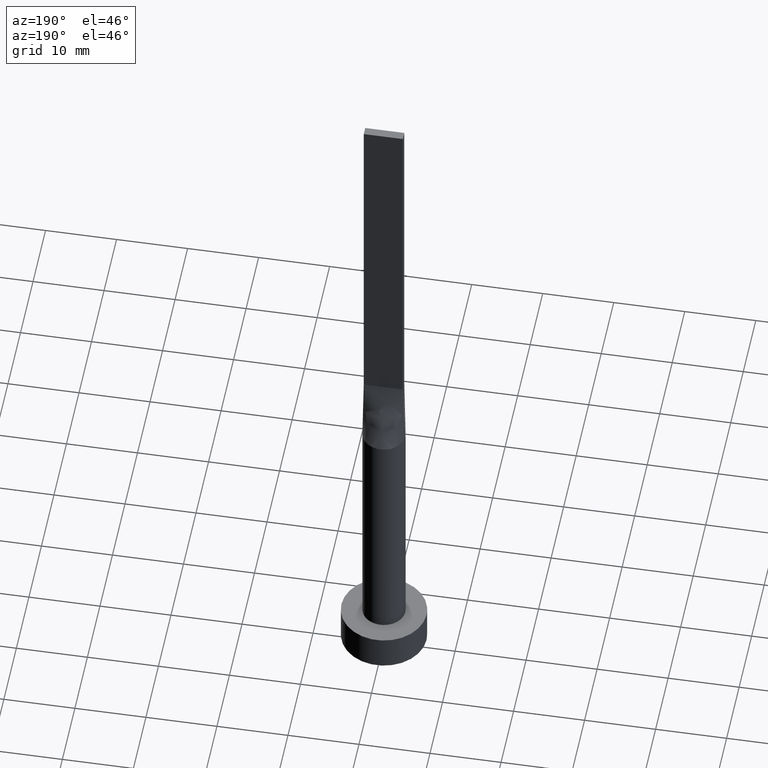
[diagram: clean part render]
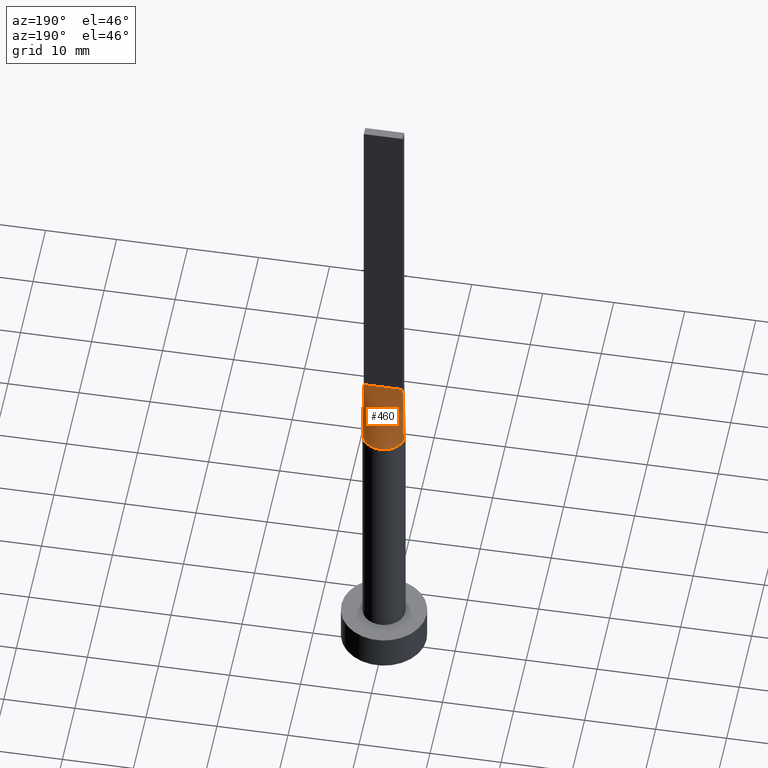
[diagram: same view with one face highlighted and labeled with its STEP entity id]
A machine part, auxiliary view. The second image highlights one B-rep face of the part: STEP entity #460.
In plain terms, the highlighted face is a freeform B-spline surface patch.
Its self-contained STEP definition (entity closure, byte-faithful):
#4 = CARTESIAN_POINT ( 'NONE',  ( -2.878980386154874616, 0.8781411751610629368, 39.99999999999999289 ) ) ;
#8 = CARTESIAN_POINT ( 'NONE',  ( 0.4026715616377294915, 2.999999999999999556, 40.00000000000000000 ) ) ;
#10 = VECTOR ( 'NONE', #322, 1000.000000000000000 ) ;
#13 = CARTESIAN_POINT ( 'NONE',  ( -1.829136458871247761, 2.402980488111649660, 39.99999999999999289 ) ) ;
#16 = CARTESIAN_POINT ( 'NONE',  ( -0.4583333333333329263, 0.6000000000000000888, 50.00000000000000000 ) ) ;
#18 = CARTESIAN_POINT ( 'NONE',  ( -2.328745122427008152, 1.922758842442225280, 39.99999999999998579 ) ) ;
#21 = ORIENTED_EDGE ( 'NONE', *, *, #505, .F. ) ;
#26 = DIRECTION ( 'NONE',  ( -0.01810162078030962129, -0.003949444533885605735, 0.9998283518749604415 ) ) ;
#53 = CARTESIAN_POINT ( 'NONE',  ( -0.8041209001220690489, 2.916015559847871419, 40.00000000000000000 ) ) ;
#61 = CARTESIAN_POINT ( 'NONE',  ( 1.145833333333333703, 0.6000000000000000888, 50.00000000000000711 ) ) ;
#67 = CARTESIAN_POINT ( 'NONE',  ( -2.520833333333333037, 0.6000000000000000888, 50.00000000000000000 ) ) ;
#69 = VERTEX_POINT ( 'NONE', #335 ) ;
#73 = CARTESIAN_POINT ( 'NONE',  ( 0.8041209001220689379, 2.916015559847871863, 40.00000000000000000 ) ) ;
#98 = LINE ( 'NONE', #143, #10 ) ;
#100 = VECTOR ( 'NONE', #376, 1000.000000000000000 ) ;
#101 = CARTESIAN_POINT ( 'NONE',  ( -2.931320679040856803, 0.6395611071856786012, 40.00000000000000000 ) ) ;
#103 = CARTESIAN_POINT ( 'NONE',  ( 1.604166666666666963, 0.6000000000000000888, 50.00000000000000000 ) ) ;
#108 = CARTESIAN_POINT ( 'NONE',  ( 0.4583333333333337589, 0.6000000000000000888, 50.00000000000000711 ) ) ;
#111 = CARTESIAN_POINT ( 'NONE',  ( 2.931047284229977290, 0.6395012256501767522, 40.00000000000000000 ) ) ;
#113 = CARTESIAN_POINT ( 'NONE',  ( -2.518011668798964653, 1.657305971825549840, 40.00000000000001421 ) ) ;
#125 = B_SPLINE_CURVE_WITH_KNOTS ( 'NONE', 3,
 ( #320, #463, #504, #323, #270, #276, #458, #543, #8, #496, #53, #546, #234, #228, #187, #541, #4, #101 ),
 .UNSPECIFIED., .F., .F.,
 ( 4, 2, 2, 2, 2, 2, 2, 2, 4 ),
 ( 0.000000000000000000, 0.1250000000000000000, 0.2500000000000000000, 0.3750000000000000000, 0.5000000000000000000, 0.6250000000000000000, 0.7500000000000000000, 0.8750000000000000000, 1.000000000000000000 ),
 .UNSPECIFIED. ) ;
#130 = CARTESIAN_POINT ( 'NONE',  ( -2.750000000000000000, 0.6000000000000001998, 50.00000000000000000 ) ) ;
#131 = ORIENTED_EDGE ( 'NONE', *, *, #435, .F. ) ;
#133 = ORIENTED_EDGE ( 'NONE', *, *, #350, .T. ) ;
#138 = CARTESIAN_POINT ( 'NONE',  ( 2.750000000000000000, 0.6000000000000001998, 50.00000000000000000 ) ) ;
#143 = CARTESIAN_POINT ( 'NONE',  ( -2.840523642114988423, 0.6197506128250878099, 45.00000000000000000 ) ) ;
#146 = CARTESIAN_POINT ( 'NONE',  ( -2.878980386154874616, 0.8781411751610629368, 39.99999999999999289 ) ) ;
#147 = EDGE_LOOP ( 'NONE', ( #133, #523, #21, #131 ) ) ;
#150 = CARTESIAN_POINT ( 'NONE',  ( 2.518011668798964209, 1.657305971825549840, 40.00000000000001421 ) ) ;
#187 = CARTESIAN_POINT ( 'NONE',  ( -2.518011668798964653, 1.657305971825549840, 40.00000000000001421 ) ) ;
#189 = CARTESIAN_POINT ( 'NONE',  ( -2.750000000000000000, 0.6000000000000001998, 50.00000000000000000 ) ) ;
#196 = CARTESIAN_POINT ( 'NONE',  ( -0.4026715616377299356, 2.999999999999999556, 40.00000000000000000 ) ) ;
#215 = VERTEX_POINT ( 'NONE', #130 ) ;
#228 = CARTESIAN_POINT ( 'NONE',  ( -2.328745122427008152, 1.922758842442225280, 39.99999999999998579 ) ) ;
#234 = CARTESIAN_POINT ( 'NONE',  ( -1.829136458871247761, 2.402980488111649660, 39.99999999999999289 ) ) ;
#236 = CARTESIAN_POINT ( 'NONE',  ( -1.517787371616671654, 2.616501225271827380, 40.00000000000000000 ) ) ;
#243 = FACE_OUTER_BOUND ( 'NONE', #147, .T. ) ;
#249 = CARTESIAN_POINT ( 'NONE',  ( -1.145833333333332815, 0.6000000000000000888, 50.00000000000000000 ) ) ;
#260 = VECTOR ( 'NONE', #26, 1000.000000000000000 ) ;
#270 = CARTESIAN_POINT ( 'NONE',  ( 2.328745122427009040, 1.922758842442225946, 39.99999999999999289 ) ) ;
#276 = CARTESIAN_POINT ( 'NONE',  ( 1.829136458871247761, 2.402980488111650992, 39.99999999999997868 ) ) ;
#277 = CARTESIAN_POINT ( 'NONE',  ( -2.931320679040856803, 0.6395611071856786012, 40.00000000000000000 ) ) ;
#283 = CARTESIAN_POINT ( 'NONE',  ( 2.750000000000000000, 0.6000000000000001998, 50.00000000000000000 ) ) ;
#291 = CARTESIAN_POINT ( 'NONE',  ( 0.9166666666666670737, 0.6000000000000000888, 50.00000000000000711 ) ) ;
#294 = LINE ( 'NONE', #473, #100 ) ;
#296 = LINE ( 'NONE', #326, #260 ) ;
#301 = VERTEX_POINT ( 'NONE', #138 ) ;
#320 = CARTESIAN_POINT ( 'NONE',  ( 2.931303352270923757, 0.6395574164693091923, 40.00000000000000000 ) ) ;
#321 = EDGE_CURVE ( 'NONE', #358, #215, #98, .T. ) ;
#322 = DIRECTION ( 'NONE',  ( 0.01810162078030957619, -0.003949444533885573642, 0.9998283518749604415 ) ) ;
#323 = CARTESIAN_POINT ( 'NONE',  ( 2.518011668798964209, 1.657305971825549840, 40.00000000000001421 ) ) ;
#326 = CARTESIAN_POINT ( 'NONE',  ( 2.840523642114988867, 0.6197506128250880320, 45.00000000000000000 ) ) ;
#328 = CARTESIAN_POINT ( 'NONE',  ( 2.520833333333333037, 0.6000000000000000888, 50.00000000000000000 ) ) ;
#335 = CARTESIAN_POINT ( 'NONE',  ( 2.931303352270923757, 0.6395574164693091923, 40.00000000000000000 ) ) ;
#338 = CARTESIAN_POINT ( 'NONE',  ( 2.328745122427009040, 1.922758842442225946, 39.99999999999999289 ) ) ;
#350 = EDGE_CURVE ( 'NONE', #69, #358, #125, .T. ) ;
#358 = VERTEX_POINT ( 'NONE', #277 ) ;
#370 = CARTESIAN_POINT ( 'NONE',  ( 0.4026715616377294915, 2.999999999999999556, 40.00000000000000000 ) ) ;
#374 = CARTESIAN_POINT ( 'NONE',  ( 2.291666666666666519, 0.6000000000000000888, 50.00000000000000000 ) ) ;
#376 = DIRECTION ( 'NONE',  ( -1.000000000000000000, -0.000000000000000000, -0.000000000000000000 ) ) ;
#379 = CARTESIAN_POINT ( 'NONE',  ( -2.931047284229977290, 0.6395012256501755310, 40.00000000000000000 ) ) ;
#381 = CARTESIAN_POINT ( 'NONE',  ( -0.2291666666666662688, 0.6000000000000000888, 50.00000000000000711 ) ) ;
#419 = CARTESIAN_POINT ( 'NONE',  ( -0.9166666666666661856, 0.6000000000000000888, 50.00000000000000000 ) ) ;
#426 = CARTESIAN_POINT ( 'NONE',  ( 2.792624347712116872, 1.135030881087315979, 40.00000000000002132 ) ) ;
#433 = CARTESIAN_POINT ( 'NONE',  ( -1.833333333333333037, 0.6000000000000000888, 50.00000000000000000 ) ) ;
#435 = EDGE_CURVE ( 'NONE', #69, #301, #296, .T. ) ;
#444 = B_SPLINE_SURFACE_WITH_KNOTS ( 'NONE', 3, 1, ( 
 ( #111, #283 ),
 ( #464, #328 ),
 ( #426, #374 ),
 ( #150, #476 ),
 ( #338, #103 ),
 ( #519, #61 ),
 ( #514, #291 ),
 ( #73, #108 ),
 ( #370, #470 ),
 ( #196, #381 ),
 ( #563, #16 ),
 ( #236, #419 ),
 ( #13, #249 ),
 ( #18, #525 ),
 ( #113, #433 ),
 ( #551, #556 ),
 ( #146, #67 ),
 ( #379, #189 ) ),
 .UNSPECIFIED., .F., .F., .F.,
 ( 4, 2, 2, 2, 2, 2, 2, 2, 4 ),
 ( 2, 2 ),
 ( 0.000000000000000000, 0.1250000000000000000, 0.2500000000000000000, 0.3750000000000000000, 0.5000000000000000000, 0.6250000000000000000, 0.7500000000000000000, 0.8750000000000000000, 1.000000000000000000 ),
 ( 0.000000000000000000, 1.000000000000000000 ),
 .UNSPECIFIED. ) ;
#458 = CARTESIAN_POINT ( 'NONE',  ( 1.517787371616672099, 2.616501225271827824, 39.99999999999999289 ) ) ;
#460 = ADVANCED_FACE ( 'NONE', ( #243 ), #444, .T. ) ;
#463 = CARTESIAN_POINT ( 'NONE',  ( 2.878980386154874616, 0.8781411751610636029, 39.99999999999999289 ) ) ;
#464 = CARTESIAN_POINT ( 'NONE',  ( 2.878980386154874616, 0.8781411751610636029, 39.99999999999999289 ) ) ;
#470 = CARTESIAN_POINT ( 'NONE',  ( 0.2291666666666671015, 0.6000000000000001998, 50.00000000000000711 ) ) ;
#473 = CARTESIAN_POINT ( 'NONE',  ( -2.750000000000000000, 0.6000000000000001998, 50.00000000000000000 ) ) ;
#476 = CARTESIAN_POINT ( 'NONE',  ( 1.833333333333333481, 0.6000000000000000888, 50.00000000000000000 ) ) ;
#496 = CARTESIAN_POINT ( 'NONE',  ( -0.4026715616377299356, 2.999999999999999556, 40.00000000000000000 ) ) ;
#504 = CARTESIAN_POINT ( 'NONE',  ( 2.792624347712116872, 1.135030881087315979, 40.00000000000002132 ) ) ;
#505 = EDGE_CURVE ( 'NONE', #301, #215, #294, .T. ) ;
#514 = CARTESIAN_POINT ( 'NONE',  ( 1.517787371616672099, 2.616501225271827824, 39.99999999999999289 ) ) ;
#519 = CARTESIAN_POINT ( 'NONE',  ( 1.829136458871247761, 2.402980488111650992, 39.99999999999997868 ) ) ;
#523 = ORIENTED_EDGE ( 'NONE', *, *, #321, .T. ) ;
#525 = CARTESIAN_POINT ( 'NONE',  ( -1.604166666666666297, 0.6000000000000000888, 50.00000000000000000 ) ) ;
#541 = CARTESIAN_POINT ( 'NONE',  ( -2.792624347712117761, 1.135030881087315313, 40.00000000000001421 ) ) ;
#543 = CARTESIAN_POINT ( 'NONE',  ( 0.8041209001220689379, 2.916015559847871863, 40.00000000000000000 ) ) ;
#546 = CARTESIAN_POINT ( 'NONE',  ( -1.517787371616671654, 2.616501225271827380, 40.00000000000000000 ) ) ;
#551 = CARTESIAN_POINT ( 'NONE',  ( -2.792624347712117761, 1.135030881087315313, 40.00000000000001421 ) ) ;
#556 = CARTESIAN_POINT ( 'NONE',  ( -2.291666666666666519, 0.6000000000000000888, 50.00000000000000000 ) ) ;
#563 = CARTESIAN_POINT ( 'NONE',  ( -0.8041209001220690489, 2.916015559847871419, 40.00000000000000000 ) ) ;